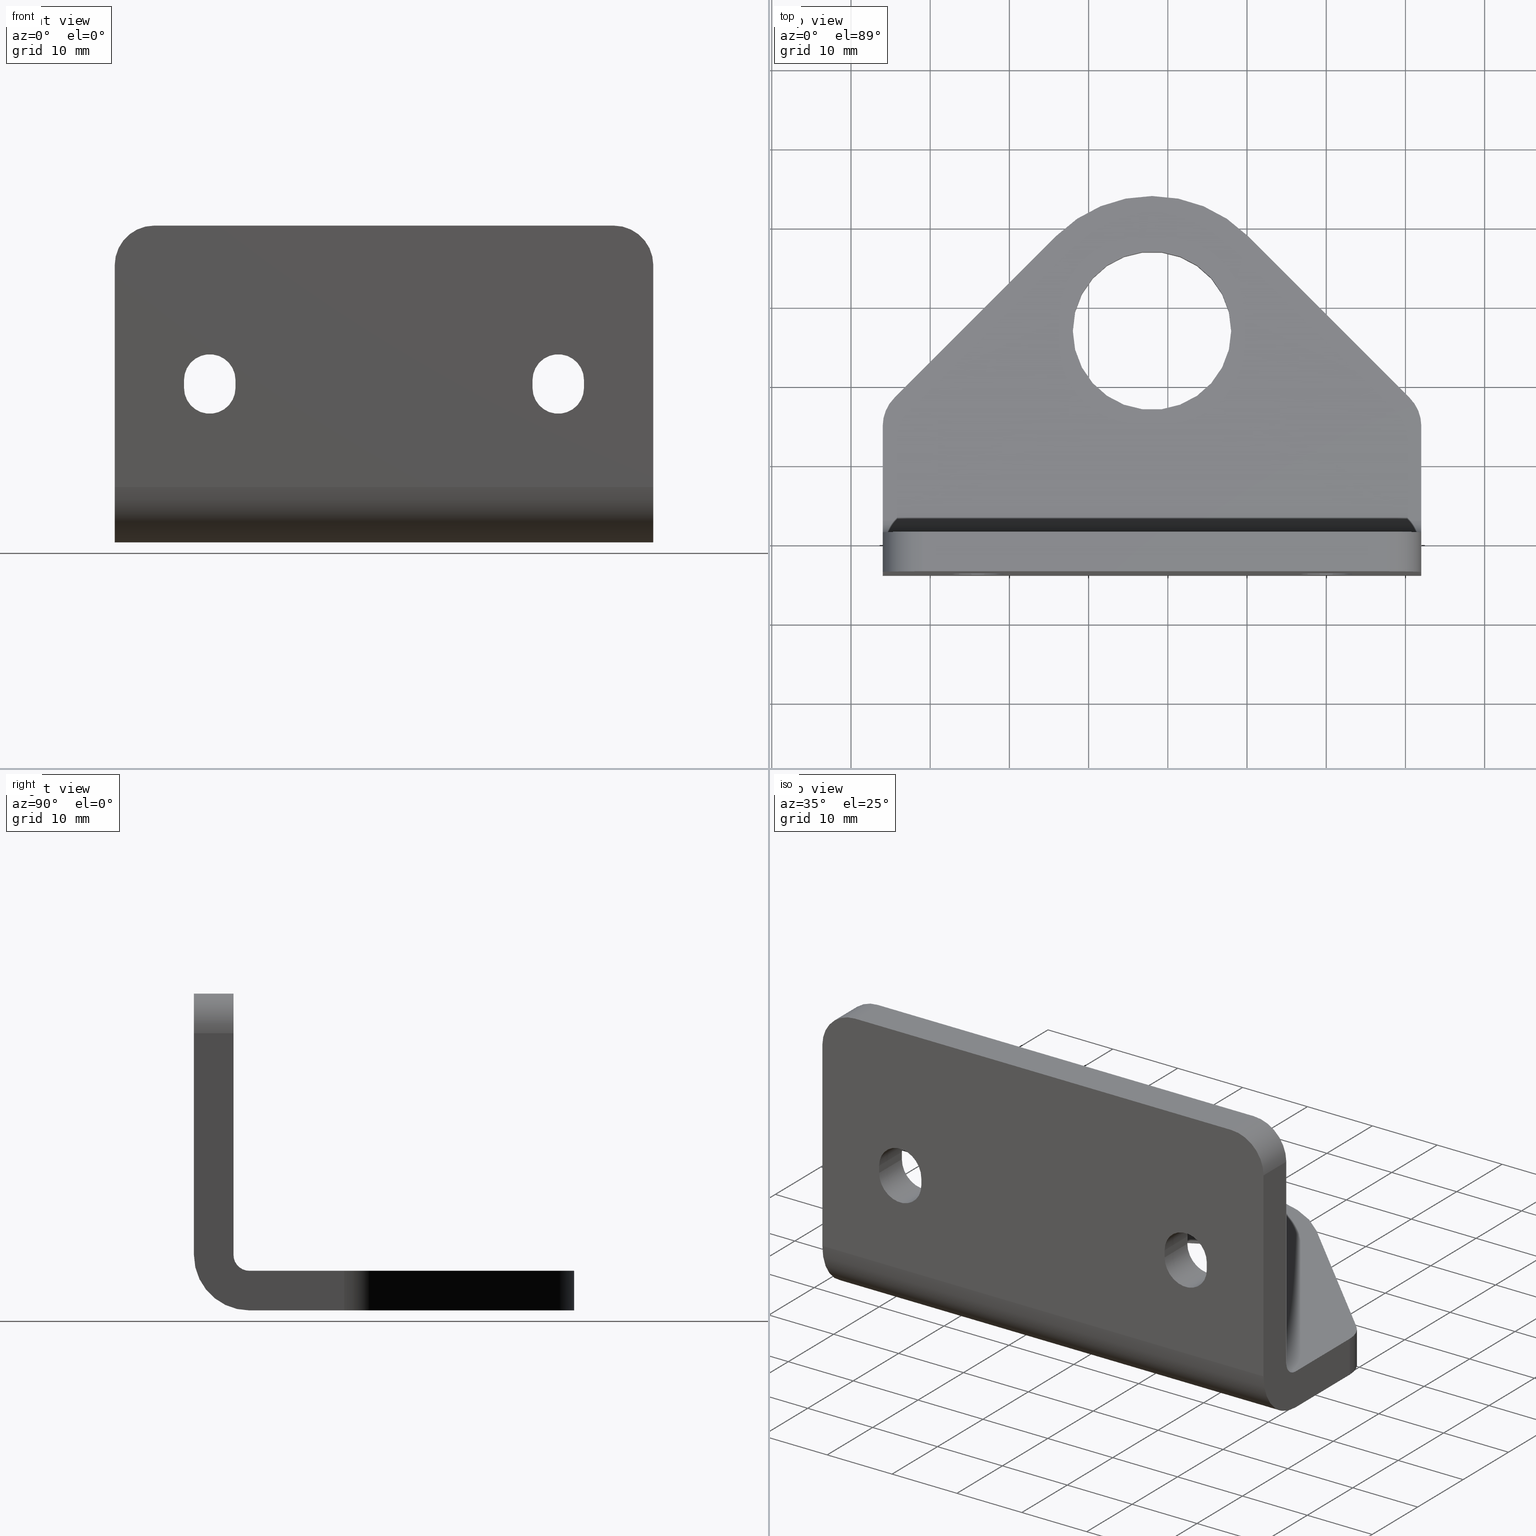
[diagram: canonical four-view strip — front | top / right | iso, engineering-drawing reading convention]
A machine part, canonical four-view strip (front | top / right | iso — engineering-drawing reading convention). The complete STEP part file that produces these views, byte-faithful:
ISO-10303-21;
HEADER;
/* Generated by software containing ST-Developer
 * from STEP Tools, Inc. (www.steptools.com) 
 */

FILE_DESCRIPTION(
/* description */ (''),
/* implementation_level */ '2;1');

FILE_NAME(
/* name */ '800 061.stp',
/* time_stamp */ '2023-12-18T09:12:01+01:00',
/* author */ ('dusan.cotek'),
/* organization */ (''),
/* preprocessor_version */ 'ST-DEVELOPER v20',
/* originating_system */ 'Autodesk Inventor 2024',
/* authorisation */ '');

FILE_SCHEMA (('AUTOMOTIVE_DESIGN { 1 0 10303 214 3 1 1 }'));
ENDSEC;

DATA;
#10=MECHANICAL_DESIGN_GEOMETRIC_PRESENTATION_REPRESENTATION('',(#13),#915);
#11=SHAPE_REPRESENTATION_RELATIONSHIP('SRR','None',#922,#12);
#12=ADVANCED_BREP_SHAPE_REPRESENTATION('',(#14),#914);
#13=STYLED_ITEM('',(#931),#14);
#14=MANIFOLD_SOLID_BREP('T\X2\011B\X0\leso2',#530);
#15=FACE_BOUND('',#78,.T.);
#16=FACE_BOUND('',#79,.T.);
#17=FACE_BOUND('',#87,.T.);
#18=FACE_BOUND('',#88,.T.);
#19=FACE_BOUND('',#92,.T.);
#20=FACE_BOUND('',#101,.T.);
#21=PLANE('',#556);
#22=PLANE('',#560);
#23=PLANE('',#564);
#24=PLANE('',#568);
#25=PLANE('',#572);
#26=PLANE('',#573);
#27=PLANE('',#577);
#28=PLANE('',#581);
#29=PLANE('',#583);
#30=PLANE('',#585);
#31=PLANE('',#586);
#32=PLANE('',#588);
#33=PLANE('',#589);
#34=PLANE('',#598);
#35=PLANE('',#601);
#36=PLANE('',#604);
#37=PLANE('',#605);
#38=FACE_OUTER_BOUND('',#67,.T.);
#39=FACE_OUTER_BOUND('',#68,.T.);
#40=FACE_OUTER_BOUND('',#69,.T.);
#41=FACE_OUTER_BOUND('',#70,.T.);
#42=FACE_OUTER_BOUND('',#71,.T.);
#43=FACE_OUTER_BOUND('',#72,.T.);
#44=FACE_OUTER_BOUND('',#73,.T.);
#45=FACE_OUTER_BOUND('',#74,.T.);
#46=FACE_OUTER_BOUND('',#75,.T.);
#47=FACE_OUTER_BOUND('',#76,.T.);
#48=FACE_OUTER_BOUND('',#77,.T.);
#49=FACE_OUTER_BOUND('',#80,.T.);
#50=FACE_OUTER_BOUND('',#81,.T.);
#51=FACE_OUTER_BOUND('',#82,.T.);
#52=FACE_OUTER_BOUND('',#83,.T.);
#53=FACE_OUTER_BOUND('',#84,.T.);
#54=FACE_OUTER_BOUND('',#85,.T.);
#55=FACE_OUTER_BOUND('',#86,.T.);
#56=FACE_OUTER_BOUND('',#89,.T.);
#57=FACE_OUTER_BOUND('',#90,.T.);
#58=FACE_OUTER_BOUND('',#91,.T.);
#59=FACE_OUTER_BOUND('',#93,.T.);
#60=FACE_OUTER_BOUND('',#94,.T.);
#61=FACE_OUTER_BOUND('',#95,.T.);
#62=FACE_OUTER_BOUND('',#96,.T.);
#63=FACE_OUTER_BOUND('',#97,.T.);
#64=FACE_OUTER_BOUND('',#98,.T.);
#65=FACE_OUTER_BOUND('',#99,.T.);
#66=FACE_OUTER_BOUND('',#100,.T.);
#67=EDGE_LOOP('',(#343,#344,#345,#346));
#68=EDGE_LOOP('',(#347,#348,#349,#350));
#69=EDGE_LOOP('',(#351,#352,#353,#354));
#70=EDGE_LOOP('',(#355,#356,#357,#358));
#71=EDGE_LOOP('',(#359,#360,#361,#362));
#72=EDGE_LOOP('',(#363,#364,#365,#366));
#73=EDGE_LOOP('',(#367,#368,#369,#370));
#74=EDGE_LOOP('',(#371,#372,#373,#374));
#75=EDGE_LOOP('',(#375,#376,#377,#378));
#76=EDGE_LOOP('',(#379,#380,#381,#382));
#77=EDGE_LOOP('',(#383,#384,#385,#386,#387,#388));
#78=EDGE_LOOP('',(#389,#390,#391,#392));
#79=EDGE_LOOP('',(#393,#394,#395,#396));
#80=EDGE_LOOP('',(#397,#398,#399,#400));
#81=EDGE_LOOP('',(#401,#402,#403,#404));
#82=EDGE_LOOP('',(#405,#406,#407,#408));
#83=EDGE_LOOP('',(#409,#410,#411,#412));
#84=EDGE_LOOP('',(#413,#414,#415,#416));
#85=EDGE_LOOP('',(#417,#418,#419,#420));
#86=EDGE_LOOP('',(#421,#422,#423,#424,#425,#426));
#87=EDGE_LOOP('',(#427,#428,#429,#430));
#88=EDGE_LOOP('',(#431,#432,#433,#434));
#89=EDGE_LOOP('',(#435,#436,#437,#438));
#90=EDGE_LOOP('',(#439,#440,#441,#442));
#91=EDGE_LOOP('',(#443,#444,#445,#446,#447,#448,#449,#450));
#92=EDGE_LOOP('',(#451));
#93=EDGE_LOOP('',(#452,#453,#454,#455));
#94=EDGE_LOOP('',(#456,#457,#458,#459));
#95=EDGE_LOOP('',(#460,#461,#462,#463));
#96=EDGE_LOOP('',(#464,#465,#466,#467));
#97=EDGE_LOOP('',(#468,#469,#470,#471));
#98=EDGE_LOOP('',(#472,#473,#474,#475));
#99=EDGE_LOOP('',(#476,#477,#478,#479));
#100=EDGE_LOOP('',(#480,#481,#482,#483,#484,#485,#486,#487));
#101=EDGE_LOOP('',(#488));
#102=LINE('',#769,#151);
#103=LINE('',#772,#152);
#104=LINE('',#775,#153);
#105=LINE('',#777,#154);
#106=LINE('',#778,#155);
#107=LINE('',#783,#156);
#108=LINE('',#786,#157);
#109=LINE('',#787,#158);
#110=LINE('',#793,#159);
#111=LINE('',#796,#160);
#112=LINE('',#799,#161);
#113=LINE('',#801,#162);
#114=LINE('',#802,#163);
#115=LINE('',#807,#164);
#116=LINE('',#810,#165);
#117=LINE('',#811,#166);
#118=LINE('',#817,#167);
#119=LINE('',#820,#168);
#120=LINE('',#823,#169);
#121=LINE('',#825,#170);
#122=LINE('',#826,#171);
#123=LINE('',#829,#172);
#124=LINE('',#833,#173);
#125=LINE('',#834,#174);
#126=LINE('',#839,#175);
#127=LINE('',#840,#176);
#128=LINE('',#843,#177);
#129=LINE('',#844,#178);
#130=LINE('',#846,#179);
#131=LINE('',#850,#180);
#132=LINE('',#855,#181);
#133=LINE('',#858,#182);
#134=LINE('',#861,#183);
#135=LINE('',#864,#184);
#136=LINE('',#867,#185);
#137=LINE('',#869,#186);
#138=LINE('',#870,#187);
#139=LINE('',#873,#188);
#140=LINE('',#877,#189);
#141=LINE('',#881,#190);
#142=LINE('',#887,#191);
#143=LINE('',#891,#192);
#144=LINE('',#894,#193);
#145=LINE('',#897,#194);
#146=LINE('',#898,#195);
#147=LINE('',#902,#196);
#148=LINE('',#905,#197);
#149=LINE('',#906,#198);
#150=LINE('',#910,#199);
#151=VECTOR('',#612,10.);
#152=VECTOR('',#615,10.);
#153=VECTOR('',#618,10.);
#154=VECTOR('',#619,10.);
#155=VECTOR('',#620,10.);
#156=VECTOR('',#625,10.);
#157=VECTOR('',#630,10.);
#158=VECTOR('',#631,10.);
#159=VECTOR('',#636,10.);
#160=VECTOR('',#639,10.);
#161=VECTOR('',#642,10.);
#162=VECTOR('',#643,10.);
#163=VECTOR('',#644,10.);
#164=VECTOR('',#649,10.);
#165=VECTOR('',#654,10.);
#166=VECTOR('',#655,10.);
#167=VECTOR('',#660,10.);
#168=VECTOR('',#663,10.);
#169=VECTOR('',#666,4.19999999999999);
#170=VECTOR('',#667,10.);
#171=VECTOR('',#668,10.);
#172=VECTOR('',#671,10.);
#173=VECTOR('',#674,4.19999999999999);
#174=VECTOR('',#675,10.);
#175=VECTOR('',#680,10.);
#176=VECTOR('',#681,10.);
#177=VECTOR('',#684,4.19999999999999);
#178=VECTOR('',#685,10.);
#179=VECTOR('',#688,10.);
#180=VECTOR('',#691,10.);
#181=VECTOR('',#698,10.);
#182=VECTOR('',#701,10.);
#183=VECTOR('',#706,10.);
#184=VECTOR('',#711,10.);
#185=VECTOR('',#714,10.);
#186=VECTOR('',#715,10.);
#187=VECTOR('',#716,10.);
#188=VECTOR('',#719,10.);
#189=VECTOR('',#722,10.);
#190=VECTOR('',#725,10.);
#191=VECTOR('',#732,10.);
#192=VECTOR('',#737,10.);
#193=VECTOR('',#740,10.);
#194=VECTOR('',#743,10.);
#195=VECTOR('',#744,10.);
#196=VECTOR('',#749,10.);
#197=VECTOR('',#752,10.);
#198=VECTOR('',#753,10.);
#199=VECTOR('',#760,10.);
#200=CIRCLE('',#554,3.25);
#201=CIRCLE('',#555,3.25);
#202=CIRCLE('',#558,3.25);
#203=CIRCLE('',#559,3.25);
#204=CIRCLE('',#562,3.25);
#205=CIRCLE('',#563,3.25);
#206=CIRCLE('',#566,3.25);
#207=CIRCLE('',#567,3.25);
#208=CIRCLE('',#570,5.);
#209=CIRCLE('',#571,5.);
#210=CIRCLE('',#574,5.);
#211=CIRCLE('',#576,5.);
#212=CIRCLE('',#579,7.);
#213=CIRCLE('',#580,6.99999999999999);
#214=CIRCLE('',#582,1.99999999999999);
#215=CIRCLE('',#584,1.99999999999999);
#216=CIRCLE('',#590,4.99999999999999);
#217=CIRCLE('',#591,17.);
#218=CIRCLE('',#592,4.9999999999999);
#219=CIRCLE('',#593,10.);
#220=CIRCLE('',#595,10.);
#221=CIRCLE('',#597,4.99999999999999);
#222=CIRCLE('',#600,17.);
#223=CIRCLE('',#603,4.9999999999999);
#224=VERTEX_POINT('',#765);
#225=VERTEX_POINT('',#766);
#226=VERTEX_POINT('',#768);
#227=VERTEX_POINT('',#770);
#228=VERTEX_POINT('',#774);
#229=VERTEX_POINT('',#776);
#230=VERTEX_POINT('',#780);
#231=VERTEX_POINT('',#782);
#232=VERTEX_POINT('',#789);
#233=VERTEX_POINT('',#790);
#234=VERTEX_POINT('',#792);
#235=VERTEX_POINT('',#794);
#236=VERTEX_POINT('',#798);
#237=VERTEX_POINT('',#800);
#238=VERTEX_POINT('',#804);
#239=VERTEX_POINT('',#806);
#240=VERTEX_POINT('',#813);
#241=VERTEX_POINT('',#814);
#242=VERTEX_POINT('',#816);
#243=VERTEX_POINT('',#818);
#244=VERTEX_POINT('',#822);
#245=VERTEX_POINT('',#824);
#246=VERTEX_POINT('',#828);
#247=VERTEX_POINT('',#830);
#248=VERTEX_POINT('',#832);
#249=VERTEX_POINT('',#836);
#250=VERTEX_POINT('',#837);
#251=VERTEX_POINT('',#842);
#252=VERTEX_POINT('',#847);
#253=VERTEX_POINT('',#849);
#254=VERTEX_POINT('',#853);
#255=VERTEX_POINT('',#857);
#256=VERTEX_POINT('',#866);
#257=VERTEX_POINT('',#868);
#258=VERTEX_POINT('',#872);
#259=VERTEX_POINT('',#874);
#260=VERTEX_POINT('',#876);
#261=VERTEX_POINT('',#878);
#262=VERTEX_POINT('',#880);
#263=VERTEX_POINT('',#883);
#264=VERTEX_POINT('',#886);
#265=VERTEX_POINT('',#890);
#266=VERTEX_POINT('',#892);
#267=VERTEX_POINT('',#896);
#268=VERTEX_POINT('',#900);
#269=VERTEX_POINT('',#904);
#270=EDGE_CURVE('',#224,#225,#200,.T.);
#271=EDGE_CURVE('',#224,#226,#102,.T.);
#272=EDGE_CURVE('',#227,#226,#201,.T.);
#273=EDGE_CURVE('',#225,#227,#103,.T.);
#274=EDGE_CURVE('',#228,#224,#104,.T.);
#275=EDGE_CURVE('',#228,#229,#105,.T.);
#276=EDGE_CURVE('',#226,#229,#106,.T.);
#277=EDGE_CURVE('',#230,#228,#202,.T.);
#278=EDGE_CURVE('',#230,#231,#107,.T.);
#279=EDGE_CURVE('',#229,#231,#203,.T.);
#280=EDGE_CURVE('',#225,#230,#108,.T.);
#281=EDGE_CURVE('',#231,#227,#109,.T.);
#282=EDGE_CURVE('',#232,#233,#204,.T.);
#283=EDGE_CURVE('',#232,#234,#110,.T.);
#284=EDGE_CURVE('',#235,#234,#205,.T.);
#285=EDGE_CURVE('',#233,#235,#111,.T.);
#286=EDGE_CURVE('',#236,#232,#112,.T.);
#287=EDGE_CURVE('',#236,#237,#113,.T.);
#288=EDGE_CURVE('',#234,#237,#114,.T.);
#289=EDGE_CURVE('',#238,#236,#206,.T.);
#290=EDGE_CURVE('',#238,#239,#115,.T.);
#291=EDGE_CURVE('',#237,#239,#207,.T.);
#292=EDGE_CURVE('',#233,#238,#116,.T.);
#293=EDGE_CURVE('',#239,#235,#117,.T.);
#294=EDGE_CURVE('',#240,#241,#208,.T.);
#295=EDGE_CURVE('',#241,#242,#118,.T.);
#296=EDGE_CURVE('',#242,#243,#209,.T.);
#297=EDGE_CURVE('',#243,#240,#119,.T.);
#298=EDGE_CURVE('',#243,#244,#120,.T.);
#299=EDGE_CURVE('',#244,#245,#121,.T.);
#300=EDGE_CURVE('',#245,#240,#122,.T.);
#301=EDGE_CURVE('',#242,#246,#123,.T.);
#302=EDGE_CURVE('',#247,#246,#210,.T.);
#303=EDGE_CURVE('',#247,#248,#124,.T.);
#304=EDGE_CURVE('',#248,#244,#125,.T.);
#305=EDGE_CURVE('',#249,#250,#211,.T.);
#306=EDGE_CURVE('',#250,#247,#126,.T.);
#307=EDGE_CURVE('',#246,#249,#127,.T.);
#308=EDGE_CURVE('',#250,#251,#128,.T.);
#309=EDGE_CURVE('',#251,#248,#129,.T.);
#310=EDGE_CURVE('',#245,#251,#130,.T.);
#311=EDGE_CURVE('',#252,#245,#212,.T.);
#312=EDGE_CURVE('',#253,#252,#131,.T.);
#313=EDGE_CURVE('',#251,#253,#213,.T.);
#314=EDGE_CURVE('',#244,#254,#214,.T.);
#315=EDGE_CURVE('',#252,#254,#132,.T.);
#316=EDGE_CURVE('',#255,#253,#133,.T.);
#317=EDGE_CURVE('',#248,#255,#215,.T.);
#318=EDGE_CURVE('',#241,#249,#134,.T.);
#319=EDGE_CURVE('',#254,#255,#135,.T.);
#320=EDGE_CURVE('',#253,#256,#136,.T.);
#321=EDGE_CURVE('',#256,#257,#137,.T.);
#322=EDGE_CURVE('',#255,#257,#138,.T.);
#323=EDGE_CURVE('',#258,#252,#139,.T.);
#324=EDGE_CURVE('',#259,#258,#216,.T.);
#325=EDGE_CURVE('',#260,#259,#140,.T.);
#326=EDGE_CURVE('',#261,#260,#217,.T.);
#327=EDGE_CURVE('',#262,#261,#141,.T.);
#328=EDGE_CURVE('',#256,#262,#218,.T.);
#329=EDGE_CURVE('',#263,#263,#219,.T.);
#330=EDGE_CURVE('',#263,#264,#142,.T.);
#331=EDGE_CURVE('',#264,#264,#220,.T.);
#332=EDGE_CURVE('',#258,#265,#143,.T.);
#333=EDGE_CURVE('',#266,#265,#221,.T.);
#334=EDGE_CURVE('',#259,#266,#144,.T.);
#335=EDGE_CURVE('',#267,#266,#145,.T.);
#336=EDGE_CURVE('',#260,#267,#146,.T.);
#337=EDGE_CURVE('',#268,#267,#222,.T.);
#338=EDGE_CURVE('',#261,#268,#147,.T.);
#339=EDGE_CURVE('',#269,#268,#148,.T.);
#340=EDGE_CURVE('',#262,#269,#149,.T.);
#341=EDGE_CURVE('',#257,#269,#223,.T.);
#342=EDGE_CURVE('',#265,#254,#150,.T.);
#343=ORIENTED_EDGE('',*,*,#270,.F.);
#344=ORIENTED_EDGE('',*,*,#271,.T.);
#345=ORIENTED_EDGE('',*,*,#272,.F.);
#346=ORIENTED_EDGE('',*,*,#273,.F.);
#347=ORIENTED_EDGE('',*,*,#274,.F.);
#348=ORIENTED_EDGE('',*,*,#275,.T.);
#349=ORIENTED_EDGE('',*,*,#276,.F.);
#350=ORIENTED_EDGE('',*,*,#271,.F.);
#351=ORIENTED_EDGE('',*,*,#277,.F.);
#352=ORIENTED_EDGE('',*,*,#278,.T.);
#353=ORIENTED_EDGE('',*,*,#279,.F.);
#354=ORIENTED_EDGE('',*,*,#275,.F.);
#355=ORIENTED_EDGE('',*,*,#280,.F.);
#356=ORIENTED_EDGE('',*,*,#273,.T.);
#357=ORIENTED_EDGE('',*,*,#281,.F.);
#358=ORIENTED_EDGE('',*,*,#278,.F.);
#359=ORIENTED_EDGE('',*,*,#282,.F.);
#360=ORIENTED_EDGE('',*,*,#283,.T.);
#361=ORIENTED_EDGE('',*,*,#284,.F.);
#362=ORIENTED_EDGE('',*,*,#285,.F.);
#363=ORIENTED_EDGE('',*,*,#286,.F.);
#364=ORIENTED_EDGE('',*,*,#287,.T.);
#365=ORIENTED_EDGE('',*,*,#288,.F.);
#366=ORIENTED_EDGE('',*,*,#283,.F.);
#367=ORIENTED_EDGE('',*,*,#289,.F.);
#368=ORIENTED_EDGE('',*,*,#290,.T.);
#369=ORIENTED_EDGE('',*,*,#291,.F.);
#370=ORIENTED_EDGE('',*,*,#287,.F.);
#371=ORIENTED_EDGE('',*,*,#292,.F.);
#372=ORIENTED_EDGE('',*,*,#285,.T.);
#373=ORIENTED_EDGE('',*,*,#293,.F.);
#374=ORIENTED_EDGE('',*,*,#290,.F.);
#375=ORIENTED_EDGE('',*,*,#294,.T.);
#376=ORIENTED_EDGE('',*,*,#295,.T.);
#377=ORIENTED_EDGE('',*,*,#296,.T.);
#378=ORIENTED_EDGE('',*,*,#297,.T.);
#379=ORIENTED_EDGE('',*,*,#297,.F.);
#380=ORIENTED_EDGE('',*,*,#298,.T.);
#381=ORIENTED_EDGE('',*,*,#299,.T.);
#382=ORIENTED_EDGE('',*,*,#300,.T.);
#383=ORIENTED_EDGE('',*,*,#296,.F.);
#384=ORIENTED_EDGE('',*,*,#301,.T.);
#385=ORIENTED_EDGE('',*,*,#302,.F.);
#386=ORIENTED_EDGE('',*,*,#303,.T.);
#387=ORIENTED_EDGE('',*,*,#304,.T.);
#388=ORIENTED_EDGE('',*,*,#298,.F.);
#389=ORIENTED_EDGE('',*,*,#270,.T.);
#390=ORIENTED_EDGE('',*,*,#280,.T.);
#391=ORIENTED_EDGE('',*,*,#277,.T.);
#392=ORIENTED_EDGE('',*,*,#274,.T.);
#393=ORIENTED_EDGE('',*,*,#282,.T.);
#394=ORIENTED_EDGE('',*,*,#292,.T.);
#395=ORIENTED_EDGE('',*,*,#289,.T.);
#396=ORIENTED_EDGE('',*,*,#286,.T.);
#397=ORIENTED_EDGE('',*,*,#305,.T.);
#398=ORIENTED_EDGE('',*,*,#306,.T.);
#399=ORIENTED_EDGE('',*,*,#302,.T.);
#400=ORIENTED_EDGE('',*,*,#307,.T.);
#401=ORIENTED_EDGE('',*,*,#306,.F.);
#402=ORIENTED_EDGE('',*,*,#308,.T.);
#403=ORIENTED_EDGE('',*,*,#309,.T.);
#404=ORIENTED_EDGE('',*,*,#303,.F.);
#405=ORIENTED_EDGE('',*,*,#310,.F.);
#406=ORIENTED_EDGE('',*,*,#311,.F.);
#407=ORIENTED_EDGE('',*,*,#312,.F.);
#408=ORIENTED_EDGE('',*,*,#313,.F.);
#409=ORIENTED_EDGE('',*,*,#299,.F.);
#410=ORIENTED_EDGE('',*,*,#314,.T.);
#411=ORIENTED_EDGE('',*,*,#315,.F.);
#412=ORIENTED_EDGE('',*,*,#311,.T.);
#413=ORIENTED_EDGE('',*,*,#309,.F.);
#414=ORIENTED_EDGE('',*,*,#313,.T.);
#415=ORIENTED_EDGE('',*,*,#316,.F.);
#416=ORIENTED_EDGE('',*,*,#317,.F.);
#417=ORIENTED_EDGE('',*,*,#295,.F.);
#418=ORIENTED_EDGE('',*,*,#318,.T.);
#419=ORIENTED_EDGE('',*,*,#307,.F.);
#420=ORIENTED_EDGE('',*,*,#301,.F.);
#421=ORIENTED_EDGE('',*,*,#294,.F.);
#422=ORIENTED_EDGE('',*,*,#300,.F.);
#423=ORIENTED_EDGE('',*,*,#310,.T.);
#424=ORIENTED_EDGE('',*,*,#308,.F.);
#425=ORIENTED_EDGE('',*,*,#305,.F.);
#426=ORIENTED_EDGE('',*,*,#318,.F.);
#427=ORIENTED_EDGE('',*,*,#272,.T.);
#428=ORIENTED_EDGE('',*,*,#276,.T.);
#429=ORIENTED_EDGE('',*,*,#279,.T.);
#430=ORIENTED_EDGE('',*,*,#281,.T.);
#431=ORIENTED_EDGE('',*,*,#284,.T.);
#432=ORIENTED_EDGE('',*,*,#288,.T.);
#433=ORIENTED_EDGE('',*,*,#291,.T.);
#434=ORIENTED_EDGE('',*,*,#293,.T.);
#435=ORIENTED_EDGE('',*,*,#304,.F.);
#436=ORIENTED_EDGE('',*,*,#317,.T.);
#437=ORIENTED_EDGE('',*,*,#319,.F.);
#438=ORIENTED_EDGE('',*,*,#314,.F.);
#439=ORIENTED_EDGE('',*,*,#316,.T.);
#440=ORIENTED_EDGE('',*,*,#320,.T.);
#441=ORIENTED_EDGE('',*,*,#321,.T.);
#442=ORIENTED_EDGE('',*,*,#322,.F.);
#443=ORIENTED_EDGE('',*,*,#312,.T.);
#444=ORIENTED_EDGE('',*,*,#323,.F.);
#445=ORIENTED_EDGE('',*,*,#324,.F.);
#446=ORIENTED_EDGE('',*,*,#325,.F.);
#447=ORIENTED_EDGE('',*,*,#326,.F.);
#448=ORIENTED_EDGE('',*,*,#327,.F.);
#449=ORIENTED_EDGE('',*,*,#328,.F.);
#450=ORIENTED_EDGE('',*,*,#320,.F.);
#451=ORIENTED_EDGE('',*,*,#329,.T.);
#452=ORIENTED_EDGE('',*,*,#329,.F.);
#453=ORIENTED_EDGE('',*,*,#330,.T.);
#454=ORIENTED_EDGE('',*,*,#331,.F.);
#455=ORIENTED_EDGE('',*,*,#330,.F.);
#456=ORIENTED_EDGE('',*,*,#324,.T.);
#457=ORIENTED_EDGE('',*,*,#332,.T.);
#458=ORIENTED_EDGE('',*,*,#333,.F.);
#459=ORIENTED_EDGE('',*,*,#334,.F.);
#460=ORIENTED_EDGE('',*,*,#325,.T.);
#461=ORIENTED_EDGE('',*,*,#334,.T.);
#462=ORIENTED_EDGE('',*,*,#335,.F.);
#463=ORIENTED_EDGE('',*,*,#336,.F.);
#464=ORIENTED_EDGE('',*,*,#326,.T.);
#465=ORIENTED_EDGE('',*,*,#336,.T.);
#466=ORIENTED_EDGE('',*,*,#337,.F.);
#467=ORIENTED_EDGE('',*,*,#338,.F.);
#468=ORIENTED_EDGE('',*,*,#327,.T.);
#469=ORIENTED_EDGE('',*,*,#338,.T.);
#470=ORIENTED_EDGE('',*,*,#339,.F.);
#471=ORIENTED_EDGE('',*,*,#340,.F.);
#472=ORIENTED_EDGE('',*,*,#328,.T.);
#473=ORIENTED_EDGE('',*,*,#340,.T.);
#474=ORIENTED_EDGE('',*,*,#341,.F.);
#475=ORIENTED_EDGE('',*,*,#321,.F.);
#476=ORIENTED_EDGE('',*,*,#315,.T.);
#477=ORIENTED_EDGE('',*,*,#342,.F.);
#478=ORIENTED_EDGE('',*,*,#332,.F.);
#479=ORIENTED_EDGE('',*,*,#323,.T.);
#480=ORIENTED_EDGE('',*,*,#319,.T.);
#481=ORIENTED_EDGE('',*,*,#322,.T.);
#482=ORIENTED_EDGE('',*,*,#341,.T.);
#483=ORIENTED_EDGE('',*,*,#339,.T.);
#484=ORIENTED_EDGE('',*,*,#337,.T.);
#485=ORIENTED_EDGE('',*,*,#335,.T.);
#486=ORIENTED_EDGE('',*,*,#333,.T.);
#487=ORIENTED_EDGE('',*,*,#342,.T.);
#488=ORIENTED_EDGE('',*,*,#331,.T.);
#489=CYLINDRICAL_SURFACE('',#553,3.25);
#490=CYLINDRICAL_SURFACE('',#557,3.25);
#491=CYLINDRICAL_SURFACE('',#561,3.25);
#492=CYLINDRICAL_SURFACE('',#565,3.25);
#493=CYLINDRICAL_SURFACE('',#569,5.);
#494=CYLINDRICAL_SURFACE('',#575,5.);
#495=CYLINDRICAL_SURFACE('',#578,7.);
#496=CYLINDRICAL_SURFACE('',#587,2.);
#497=CYLINDRICAL_SURFACE('',#594,10.);
#498=CYLINDRICAL_SURFACE('',#596,4.99999999999999);
#499=CYLINDRICAL_SURFACE('',#599,17.);
#500=CYLINDRICAL_SURFACE('',#602,4.9999999999999);
#501=ADVANCED_FACE('',(#38),#489,.F.);
#502=ADVANCED_FACE('',(#39),#21,.F.);
#503=ADVANCED_FACE('',(#40),#490,.F.);
#504=ADVANCED_FACE('',(#41),#22,.F.);
#505=ADVANCED_FACE('',(#42),#491,.F.);
#506=ADVANCED_FACE('',(#43),#23,.F.);
#507=ADVANCED_FACE('',(#44),#492,.F.);
#508=ADVANCED_FACE('',(#45),#24,.F.);
#509=ADVANCED_FACE('',(#46),#493,.T.);
#510=ADVANCED_FACE('',(#47),#25,.T.);
#511=ADVANCED_FACE('',(#48,#15,#16),#26,.T.);
#512=ADVANCED_FACE('',(#49),#494,.T.);
#513=ADVANCED_FACE('',(#50),#27,.T.);
#514=ADVANCED_FACE('',(#51),#495,.T.);
#515=ADVANCED_FACE('',(#52),#28,.T.);
#516=ADVANCED_FACE('',(#53),#29,.T.);
#517=ADVANCED_FACE('',(#54),#30,.T.);
#518=ADVANCED_FACE('',(#55,#17,#18),#31,.F.);
#519=ADVANCED_FACE('',(#56),#496,.F.);
#520=ADVANCED_FACE('',(#57),#32,.T.);
#521=ADVANCED_FACE('',(#58,#19),#33,.F.);
#522=ADVANCED_FACE('',(#59),#497,.F.);
#523=ADVANCED_FACE('',(#60),#498,.T.);
#524=ADVANCED_FACE('',(#61),#34,.T.);
#525=ADVANCED_FACE('',(#62),#499,.T.);
#526=ADVANCED_FACE('',(#63),#35,.T.);
#527=ADVANCED_FACE('',(#64),#500,.T.);
#528=ADVANCED_FACE('',(#65),#36,.T.);
#529=ADVANCED_FACE('',(#66,#20),#37,.T.);
#530=CLOSED_SHELL('',(#501,#502,#503,#504,#505,#506,#507,#508,#509,#510,
#511,#512,#513,#514,#515,#516,#517,#518,#519,#520,#521,#522,#523,#524,#525,
#526,#527,#528,#529));
#531=DERIVED_UNIT_ELEMENT(#534,1.);
#532=DERIVED_UNIT_ELEMENT(#917,-3.);
#533=DIMENSIONAL_EXPONENTS(0.,1.,0.,0.,0.,0.,0.);
#534=(
CONVERSION_BASED_UNIT('gram',#536)
MASS_UNIT()
NAMED_UNIT(#533)
);
#535=(
MASS_UNIT()
NAMED_UNIT(*)
SI_UNIT(.KILO.,.GRAM.)
);
#536=MASS_MEASURE_WITH_UNIT(MASS_MEASURE(0.001),#535);
#537=DERIVED_UNIT((#531,#532));
#538=MEASURE_REPRESENTATION_ITEM('density measure',
POSITIVE_RATIO_MEASURE(7.85),#537);
#539=PROPERTY_DEFINITION_REPRESENTATION(#544,#541);
#540=PROPERTY_DEFINITION_REPRESENTATION(#545,#542);
#541=REPRESENTATION('material name',(#543),#914);
#542=REPRESENTATION('density',(#538),#914);
#543=DESCRIPTIVE_REPRESENTATION_ITEM('Ocel','Ocel');
#544=PROPERTY_DEFINITION('material property','material name',#924);
#545=PROPERTY_DEFINITION('material property','density of part',#924);
#546=DATE_TIME_ROLE('creation_date');
#547=APPLIED_DATE_AND_TIME_ASSIGNMENT(#548,#546,(#924));
#548=DATE_AND_TIME(#549,#550);
#549=CALENDAR_DATE(2017,17,1);
#550=LOCAL_TIME(0,0,0.,#551);
#551=COORDINATED_UNIVERSAL_TIME_OFFSET(0,0,.BEHIND.);
#552=AXIS2_PLACEMENT_3D('',#763,#606,#607);
#553=AXIS2_PLACEMENT_3D('',#764,#608,#609);
#554=AXIS2_PLACEMENT_3D('',#767,#610,#611);
#555=AXIS2_PLACEMENT_3D('',#771,#613,#614);
#556=AXIS2_PLACEMENT_3D('',#773,#616,#617);
#557=AXIS2_PLACEMENT_3D('',#779,#621,#622);
#558=AXIS2_PLACEMENT_3D('',#781,#623,#624);
#559=AXIS2_PLACEMENT_3D('',#784,#626,#627);
#560=AXIS2_PLACEMENT_3D('',#785,#628,#629);
#561=AXIS2_PLACEMENT_3D('',#788,#632,#633);
#562=AXIS2_PLACEMENT_3D('',#791,#634,#635);
#563=AXIS2_PLACEMENT_3D('',#795,#637,#638);
#564=AXIS2_PLACEMENT_3D('',#797,#640,#641);
#565=AXIS2_PLACEMENT_3D('',#803,#645,#646);
#566=AXIS2_PLACEMENT_3D('',#805,#647,#648);
#567=AXIS2_PLACEMENT_3D('',#808,#650,#651);
#568=AXIS2_PLACEMENT_3D('',#809,#652,#653);
#569=AXIS2_PLACEMENT_3D('',#812,#656,#657);
#570=AXIS2_PLACEMENT_3D('',#815,#658,#659);
#571=AXIS2_PLACEMENT_3D('',#819,#661,#662);
#572=AXIS2_PLACEMENT_3D('',#821,#664,#665);
#573=AXIS2_PLACEMENT_3D('',#827,#669,#670);
#574=AXIS2_PLACEMENT_3D('',#831,#672,#673);
#575=AXIS2_PLACEMENT_3D('',#835,#676,#677);
#576=AXIS2_PLACEMENT_3D('',#838,#678,#679);
#577=AXIS2_PLACEMENT_3D('',#841,#682,#683);
#578=AXIS2_PLACEMENT_3D('',#845,#686,#687);
#579=AXIS2_PLACEMENT_3D('',#848,#689,#690);
#580=AXIS2_PLACEMENT_3D('',#851,#692,#693);
#581=AXIS2_PLACEMENT_3D('',#852,#694,#695);
#582=AXIS2_PLACEMENT_3D('',#854,#696,#697);
#583=AXIS2_PLACEMENT_3D('',#856,#699,#700);
#584=AXIS2_PLACEMENT_3D('',#859,#702,#703);
#585=AXIS2_PLACEMENT_3D('',#860,#704,#705);
#586=AXIS2_PLACEMENT_3D('',#862,#707,#708);
#587=AXIS2_PLACEMENT_3D('',#863,#709,#710);
#588=AXIS2_PLACEMENT_3D('',#865,#712,#713);
#589=AXIS2_PLACEMENT_3D('',#871,#717,#718);
#590=AXIS2_PLACEMENT_3D('',#875,#720,#721);
#591=AXIS2_PLACEMENT_3D('',#879,#723,#724);
#592=AXIS2_PLACEMENT_3D('',#882,#726,#727);
#593=AXIS2_PLACEMENT_3D('',#884,#728,#729);
#594=AXIS2_PLACEMENT_3D('',#885,#730,#731);
#595=AXIS2_PLACEMENT_3D('',#888,#733,#734);
#596=AXIS2_PLACEMENT_3D('',#889,#735,#736);
#597=AXIS2_PLACEMENT_3D('',#893,#738,#739);
#598=AXIS2_PLACEMENT_3D('',#895,#741,#742);
#599=AXIS2_PLACEMENT_3D('',#899,#745,#746);
#600=AXIS2_PLACEMENT_3D('',#901,#747,#748);
#601=AXIS2_PLACEMENT_3D('',#903,#750,#751);
#602=AXIS2_PLACEMENT_3D('',#907,#754,#755);
#603=AXIS2_PLACEMENT_3D('',#908,#756,#757);
#604=AXIS2_PLACEMENT_3D('',#909,#758,#759);
#605=AXIS2_PLACEMENT_3D('',#911,#761,#762);
#606=DIRECTION('axis',(0.,0.,1.));
#607=DIRECTION('refdir',(1.,0.,0.));
#608=DIRECTION('center_axis',(0.,-1.,-5.77315972805081E-15));
#609=DIRECTION('ref_axis',(-1.,-5.12759588393657E-29,8.88178419700125E-15));
#610=DIRECTION('center_axis',(-4.88408820356846E-18,-1.,-5.58626046576697E-15));
#611=DIRECTION('ref_axis',(-1.,4.88408820351885E-18,8.88178419700125E-15));
#612=DIRECTION('',(0.,-1.,-5.77315972805081E-15));
#613=DIRECTION('center_axis',(-4.88408820356866E-18,1.,5.58626046576697E-15));
#614=DIRECTION('ref_axis',(-1.,-4.88408820361828E-18,8.88178419700125E-15));
#615=DIRECTION('',(0.,-1.,-5.77315972805081E-15));
#616=DIRECTION('center_axis',(-1.,0.,0.));
#617=DIRECTION('ref_axis',(0.,5.6843418860808E-15,-1.));
#618=DIRECTION('',(0.,5.58626046576697E-15,-1.));
#619=DIRECTION('',(0.,-1.,-5.77315972805081E-15));
#620=DIRECTION('',(0.,-5.58626046576697E-15,1.));
#621=DIRECTION('center_axis',(0.,-1.,-5.77315972805081E-15));
#622=DIRECTION('ref_axis',(1.,5.12759588393657E-29,-8.88178419700125E-15));
#623=DIRECTION('center_axis',(-4.88408820356846E-18,-1.,-5.58626046576697E-15));
#624=DIRECTION('ref_axis',(1.,-4.88408820351885E-18,-8.88178419700125E-15));
#625=DIRECTION('',(0.,-1.,-5.77315972805081E-15));
#626=DIRECTION('center_axis',(-4.88408820356866E-18,1.,5.58626046576697E-15));
#627=DIRECTION('ref_axis',(1.,4.88408820361828E-18,-8.88178419700125E-15));
#628=DIRECTION('center_axis',(1.,0.,0.));
#629=DIRECTION('ref_axis',(0.,-5.6843418860808E-15,1.));
#630=DIRECTION('',(0.,-5.58626046576697E-15,1.));
#631=DIRECTION('',(0.,5.58626046576697E-15,-1.));
#632=DIRECTION('center_axis',(0.,-1.,-5.77315972805081E-15));
#633=DIRECTION('ref_axis',(-1.,-5.12759588393657E-29,8.88178419700125E-15));
#634=DIRECTION('center_axis',(-4.88408820356846E-18,-1.,-5.58626046576697E-15));
#635=DIRECTION('ref_axis',(-1.,4.88408820351885E-18,8.88178419700125E-15));
#636=DIRECTION('',(0.,-1.,-5.77315972805081E-15));
#637=DIRECTION('center_axis',(-4.88408820356866E-18,1.,5.58626046576697E-15));
#638=DIRECTION('ref_axis',(-1.,-4.88408820361828E-18,8.88178419700125E-15));
#639=DIRECTION('',(0.,-1.,-5.77315972805081E-15));
#640=DIRECTION('center_axis',(-1.,0.,0.));
#641=DIRECTION('ref_axis',(0.,5.6843418860808E-15,-1.));
#642=DIRECTION('',(0.,5.58626046576697E-15,-1.));
#643=DIRECTION('',(0.,-1.,-5.77315972805081E-15));
#644=DIRECTION('',(0.,-5.58626046576697E-15,1.));
#645=DIRECTION('center_axis',(0.,-1.,-5.77315972805081E-15));
#646=DIRECTION('ref_axis',(1.,5.12759588393657E-29,-8.88178419700125E-15));
#647=DIRECTION('center_axis',(-4.88408820356846E-18,-1.,-5.58626046576697E-15));
#648=DIRECTION('ref_axis',(1.,-4.88408820351885E-18,-8.88178419700125E-15));
#649=DIRECTION('',(0.,-1.,-5.77315972805081E-15));
#650=DIRECTION('center_axis',(-4.88408820356866E-18,1.,5.58626046576697E-15));
#651=DIRECTION('ref_axis',(1.,4.88408820361828E-18,-8.88178419700125E-15));
#652=DIRECTION('center_axis',(1.,0.,0.));
#653=DIRECTION('ref_axis',(0.,-5.6843418860808E-15,1.));
#654=DIRECTION('',(0.,-5.58626046576697E-15,1.));
#655=DIRECTION('',(0.,5.58626046576697E-15,-1.));
#656=DIRECTION('center_axis',(0.,-1.,-5.39030285815812E-15));
#657=DIRECTION('ref_axis',(-0.707106781186548,-3.81151970365284E-15,0.707106781186548));
#658=DIRECTION('center_axis',(-4.88408820356866E-18,1.,5.58626046576697E-15));
#659=DIRECTION('ref_axis',(-0.707106781186548,-3.9535362287068E-15,0.707106781186548));
#660=DIRECTION('',(0.,1.,5.39030285815812E-15));
#661=DIRECTION('center_axis',(-4.88408820356846E-18,-1.,-5.58626046576697E-15));
#662=DIRECTION('ref_axis',(-0.707106781186548,-3.94662908492949E-15,0.707106781186548));
#663=DIRECTION('',(0.,-1.,-5.39030285815812E-15));
#664=DIRECTION('center_axis',(-1.,0.,0.));
#665=DIRECTION('ref_axis',(0.,1.,5.41788836017076E-15));
#666=DIRECTION('',(0.,5.32907051820075E-15,-1.));
#667=DIRECTION('',(0.,-1.,-5.39030285815812E-15));
#668=DIRECTION('',(0.,-5.39030285815812E-15,1.));
#669=DIRECTION('center_axis',(4.88408820356846E-18,1.,5.58626046576697E-15));
#670=DIRECTION('ref_axis',(1.,-4.88408820356846E-18,-2.72837888429133E-32));
#671=DIRECTION('',(1.,0.,0.));
#672=DIRECTION('center_axis',(-4.88408820356846E-18,-1.,-5.58626046576697E-15));
#673=DIRECTION('ref_axis',(0.707106781186548,-3.9535362287068E-15,0.707106781186548));
#674=DIRECTION('',(0.,5.32907051820075E-15,-1.));
#675=DIRECTION('',(-1.,4.88408820356846E-18,2.63267146031914E-32));
#676=DIRECTION('center_axis',(0.,-1.,-5.39030285815812E-15));
#677=DIRECTION('ref_axis',(0.707106781186548,-3.81151970365284E-15,0.707106781186548));
#678=DIRECTION('center_axis',(-4.88408820356866E-18,1.,5.58626046576697E-15));
#679=DIRECTION('ref_axis',(0.707106781186548,-3.94662908492949E-15,0.707106781186548));
#680=DIRECTION('',(0.,1.,5.39030285815812E-15));
#681=DIRECTION('',(0.,-1.,-5.39030285815812E-15));
#682=DIRECTION('center_axis',(1.,0.,0.));
#683=DIRECTION('ref_axis',(0.,-1.,-5.41788836017076E-15));
#684=DIRECTION('',(0.,5.32907051820075E-15,-1.));
#685=DIRECTION('',(0.,1.,5.39030285815812E-15));
#686=DIRECTION('center_axis',(-1.,0.,0.));
#687=DIRECTION('ref_axis',(0.,0.,-1.));
#688=DIRECTION('',(1.,4.88408820356866E-18,2.63267146031925E-32));
#689=DIRECTION('center_axis',(-1.,0.,0.));
#690=DIRECTION('ref_axis',(0.,0.,-1.));
#691=DIRECTION('',(-1.,0.,0.));
#692=DIRECTION('center_axis',(1.,0.,0.));
#693=DIRECTION('ref_axis',(0.,-1.,-5.39251183389362E-15));
#694=DIRECTION('center_axis',(-1.,0.,0.));
#695=DIRECTION('ref_axis',(0.,0.,1.));
#696=DIRECTION('center_axis',(1.,0.,0.));
#697=DIRECTION('ref_axis',(0.,-1.,-5.5511151231258E-15));
#698=DIRECTION('',(0.,0.,1.));
#699=DIRECTION('center_axis',(1.,0.,0.));
#700=DIRECTION('ref_axis',(0.,0.,-1.));
#701=DIRECTION('',(0.,0.,-1.));
#702=DIRECTION('center_axis',(1.,0.,0.));
#703=DIRECTION('ref_axis',(0.,-1.,-5.5511151231258E-15));
#704=DIRECTION('center_axis',(0.,-5.39030285815812E-15,1.));
#705=DIRECTION('ref_axis',(0.,-1.,-5.39030285815812E-15));
#706=DIRECTION('',(1.,0.,0.));
#707=DIRECTION('center_axis',(-4.88408820356866E-18,1.,5.58626046576697E-15));
#708=DIRECTION('ref_axis',(1.,4.88408820356866E-18,2.72837888429144E-32));
#709=DIRECTION('center_axis',(-1.,0.,0.));
#710=DIRECTION('ref_axis',(0.,0.,-1.));
#711=DIRECTION('',(1.,0.,0.));
#712=DIRECTION('center_axis',(1.,0.,0.));
#713=DIRECTION('ref_axis',(0.,1.,0.));
#714=DIRECTION('',(0.,1.,0.));
#715=DIRECTION('',(0.,0.,1.));
#716=DIRECTION('',(0.,1.,0.));
#717=DIRECTION('center_axis',(0.,0.,1.));
#718=DIRECTION('ref_axis',(1.,0.,0.));
#719=DIRECTION('',(0.,-1.,0.));
#720=DIRECTION('center_axis',(0.,0.,1.));
#721=DIRECTION('ref_axis',(-0.707106781186547,0.707106781186548,0.));
#722=DIRECTION('',(-0.707106781186541,-0.707106781186554,0.));
#723=DIRECTION('center_axis',(0.,0.,1.));
#724=DIRECTION('ref_axis',(0.707106781186542,0.707106781186554,0.));
#725=DIRECTION('',(-0.707106781186554,0.707106781186541,0.));
#726=DIRECTION('center_axis',(0.,0.,1.));
#727=DIRECTION('ref_axis',(1.,0.,0.));
#728=DIRECTION('center_axis',(0.,0.,1.));
#729=DIRECTION('ref_axis',(-1.,0.,0.));
#730=DIRECTION('center_axis',(0.,0.,1.));
#731=DIRECTION('ref_axis',(-1.,0.,0.));
#732=DIRECTION('',(0.,0.,1.));
#733=DIRECTION('center_axis',(0.,0.,-1.));
#734=DIRECTION('ref_axis',(-1.,0.,0.));
#735=DIRECTION('center_axis',(0.,0.,1.));
#736=DIRECTION('ref_axis',(-0.707106781186547,0.707106781186548,0.));
#737=DIRECTION('',(0.,0.,1.));
#738=DIRECTION('center_axis',(0.,0.,1.));
#739=DIRECTION('ref_axis',(-0.707106781186547,0.707106781186548,0.));
#740=DIRECTION('',(0.,0.,1.));
#741=DIRECTION('center_axis',(-0.707106781186554,0.707106781186541,0.));
#742=DIRECTION('ref_axis',(-0.707106781186541,-0.707106781186554,0.));
#743=DIRECTION('',(-0.707106781186541,-0.707106781186554,0.));
#744=DIRECTION('',(0.,0.,1.));
#745=DIRECTION('center_axis',(0.,0.,1.));
#746=DIRECTION('ref_axis',(0.707106781186542,0.707106781186554,0.));
#747=DIRECTION('center_axis',(0.,0.,1.));
#748=DIRECTION('ref_axis',(0.707106781186542,0.707106781186554,0.));
#749=DIRECTION('',(0.,0.,1.));
#750=DIRECTION('center_axis',(0.707106781186541,0.707106781186554,0.));
#751=DIRECTION('ref_axis',(-0.707106781186554,0.707106781186541,0.));
#752=DIRECTION('',(-0.707106781186554,0.707106781186541,0.));
#753=DIRECTION('',(0.,0.,1.));
#754=DIRECTION('center_axis',(0.,0.,1.));
#755=DIRECTION('ref_axis',(1.,0.,0.));
#756=DIRECTION('center_axis',(0.,0.,1.));
#757=DIRECTION('ref_axis',(1.,0.,0.));
#758=DIRECTION('center_axis',(-1.,0.,0.));
#759=DIRECTION('ref_axis',(0.,-1.,0.));
#760=DIRECTION('',(0.,-1.,0.));
#761=DIRECTION('center_axis',(0.,0.,1.));
#762=DIRECTION('ref_axis',(1.,0.,0.));
#763=CARTESIAN_POINT('',(0.,0.,0.));
#764=CARTESIAN_POINT('Origin',(80.0042552273484,231.069817976792,19.5));
#765=CARTESIAN_POINT('',(76.7542552273484,231.069817976792,19.5000000000001));
#766=CARTESIAN_POINT('',(83.2542552273484,231.069817976792,19.5));
#767=CARTESIAN_POINT('Origin',(80.0042552273484,231.069817976792,19.5));
#768=CARTESIAN_POINT('',(76.7542552273484,226.069817976792,19.5));
#769=CARTESIAN_POINT('',(76.7542552273484,231.069817976792,19.5000000000001));
#770=CARTESIAN_POINT('',(83.2542552273484,226.069817976792,19.5));
#771=CARTESIAN_POINT('Origin',(80.0042552273484,226.069817976792,19.5));
#772=CARTESIAN_POINT('',(83.2542552273484,231.069817976792,19.5));
#773=CARTESIAN_POINT('Origin',(76.7542552273484,231.069817976792,20.5000000000001));
#774=CARTESIAN_POINT('',(76.7542552273484,231.069817976792,20.5000000000001));
#775=CARTESIAN_POINT('',(76.7542552273484,231.069817976792,20.3506638568655));
#776=CARTESIAN_POINT('',(76.7542552273484,226.069817976792,20.5));
#777=CARTESIAN_POINT('',(76.7542552273484,231.069817976792,20.5000000000001));
#778=CARTESIAN_POINT('',(76.7542552273484,226.069817976792,20.3506638568654));
#779=CARTESIAN_POINT('Origin',(80.0042552273484,231.069817976792,20.5));
#780=CARTESIAN_POINT('',(83.2542552273484,231.069817976792,20.5));
#781=CARTESIAN_POINT('Origin',(80.0042552273484,231.069817976792,20.5));
#782=CARTESIAN_POINT('',(83.2542552273484,226.069817976792,20.5));
#783=CARTESIAN_POINT('',(83.2542552273484,231.069817976792,20.5));
#784=CARTESIAN_POINT('Origin',(80.0042552273484,226.069817976792,20.5));
#785=CARTESIAN_POINT('Origin',(83.2542552273484,231.069817976792,19.5));
#786=CARTESIAN_POINT('',(83.2542552273484,231.069817976792,19.8506638568654));
#787=CARTESIAN_POINT('',(83.2542552273484,226.069817976792,19.8506638568654));
#788=CARTESIAN_POINT('Origin',(36.0042552273484,231.069817976792,19.5));
#789=CARTESIAN_POINT('',(32.7542552273484,231.069817976792,19.5000000000001));
#790=CARTESIAN_POINT('',(39.2542552273484,231.069817976792,19.5));
#791=CARTESIAN_POINT('Origin',(36.0042552273484,231.069817976792,19.5));
#792=CARTESIAN_POINT('',(32.7542552273484,226.069817976792,19.5));
#793=CARTESIAN_POINT('',(32.7542552273484,231.069817976792,19.5000000000001));
#794=CARTESIAN_POINT('',(39.2542552273484,226.069817976792,19.5));
#795=CARTESIAN_POINT('Origin',(36.0042552273484,226.069817976792,19.5));
#796=CARTESIAN_POINT('',(39.2542552273484,231.069817976792,19.5));
#797=CARTESIAN_POINT('Origin',(32.7542552273484,231.069817976792,20.5000000000001));
#798=CARTESIAN_POINT('',(32.7542552273484,231.069817976792,20.5000000000001));
#799=CARTESIAN_POINT('',(32.7542552273484,231.069817976792,20.3506638568655));
#800=CARTESIAN_POINT('',(32.7542552273484,226.069817976792,20.5));
#801=CARTESIAN_POINT('',(32.7542552273484,231.069817976792,20.5000000000001));
#802=CARTESIAN_POINT('',(32.7542552273484,226.069817976792,20.3506638568654));
#803=CARTESIAN_POINT('Origin',(36.0042552273484,231.069817976792,20.5));
#804=CARTESIAN_POINT('',(39.2542552273484,231.069817976792,20.5));
#805=CARTESIAN_POINT('Origin',(36.0042552273484,231.069817976792,20.5));
#806=CARTESIAN_POINT('',(39.2542552273484,226.069817976792,20.5));
#807=CARTESIAN_POINT('',(39.2542552273484,231.069817976792,20.5));
#808=CARTESIAN_POINT('Origin',(36.0042552273484,226.069817976792,20.5));
#809=CARTESIAN_POINT('Origin',(39.2542552273484,231.069817976792,19.5));
#810=CARTESIAN_POINT('',(39.2542552273484,231.069817976792,19.8506638568654));
#811=CARTESIAN_POINT('',(39.2542552273484,226.069817976792,19.8506638568654));
#812=CARTESIAN_POINT('Origin',(29.0042550273485,231.069817976792,35.));
#813=CARTESIAN_POINT('',(24.0042550273485,226.069817976792,35.));
#814=CARTESIAN_POINT('',(29.0042550273485,226.069817976792,40.));
#815=CARTESIAN_POINT('Origin',(29.0042550273485,226.069817976792,35.));
#816=CARTESIAN_POINT('',(29.0042550273485,231.069817976792,40.));
#817=CARTESIAN_POINT('',(29.0042550273485,231.069817976792,40.));
#818=CARTESIAN_POINT('',(24.0042550273485,231.069817976792,35.));
#819=CARTESIAN_POINT('Origin',(29.0042550273485,231.069817976792,35.));
#820=CARTESIAN_POINT('',(24.0042550273485,231.069817976792,35.));
#821=CARTESIAN_POINT('Origin',(24.0042550273485,231.069817976793,7.00000000000003));
#822=CARTESIAN_POINT('',(24.0042550273485,231.069817976793,7.00000000000003));
#823=CARTESIAN_POINT('',(24.0042550273485,231.069817976793,-6.19468914507706));
#824=CARTESIAN_POINT('',(24.0042550273485,226.069817976793,6.99999999999999));
#825=CARTESIAN_POINT('',(24.0042550273485,229.969817976793,7.00000000000003));
#826=CARTESIAN_POINT('',(24.0042550273485,226.069817976793,6.99999999999999));
#827=CARTESIAN_POINT('Origin',(58.0042551273484,231.069817976792,20.2013277137308));
#828=CARTESIAN_POINT('',(87.0042552273484,231.069817976792,40.));
#829=CARTESIAN_POINT('',(24.0042550273485,231.069817976792,40.));
#830=CARTESIAN_POINT('',(92.0042552273484,231.069817976792,35.));
#831=CARTESIAN_POINT('Origin',(87.0042552273484,231.069817976792,35.));
#832=CARTESIAN_POINT('',(92.0042552273484,231.069817976793,7.00000000000003));
#833=CARTESIAN_POINT('',(92.0042552273484,231.069817976793,-6.19468914507706));
#834=CARTESIAN_POINT('',(58.0042551273484,231.069817976793,7.00000000000003));
#835=CARTESIAN_POINT('Origin',(87.0042552273484,231.069817976792,35.));
#836=CARTESIAN_POINT('',(87.0042552273484,226.069817976792,40.));
#837=CARTESIAN_POINT('',(92.0042552273484,226.069817976792,35.));
#838=CARTESIAN_POINT('Origin',(87.0042552273484,226.069817976792,35.));
#839=CARTESIAN_POINT('',(92.0042552273484,231.069817976792,35.));
#840=CARTESIAN_POINT('',(87.0042552273484,231.069817976792,40.));
#841=CARTESIAN_POINT('Origin',(92.0042552273484,231.069817976793,7.00000000000003));
#842=CARTESIAN_POINT('',(92.0042552273484,226.069817976793,6.99999999999999));
#843=CARTESIAN_POINT('',(92.0042552273484,226.069817976793,-6.1946891450771));
#844=CARTESIAN_POINT('',(92.0042552273484,229.969817976793,7.00000000000003));
#845=CARTESIAN_POINT('Origin',(58.0042551273484,233.069817976792,7.));
#846=CARTESIAN_POINT('',(58.0042551273484,226.069817976793,6.99999999999999));
#847=CARTESIAN_POINT('',(24.0042550273485,233.069817976792,0.));
#848=CARTESIAN_POINT('Origin',(24.0042550273485,233.069817976792,7.));
#849=CARTESIAN_POINT('',(92.0042552273484,233.069817976792,0.));
#850=CARTESIAN_POINT('',(75.0042551773484,233.069817976792,0.));
#851=CARTESIAN_POINT('Origin',(92.0042552273484,233.069817976792,7.));
#852=CARTESIAN_POINT('Origin',(24.0042550273485,231.069817976793,6.99999999999999));
#853=CARTESIAN_POINT('',(24.0042550273485,233.069817976792,5.));
#854=CARTESIAN_POINT('Origin',(24.0042550273485,233.069817976792,7.));
#855=CARTESIAN_POINT('',(24.0042550273485,233.069817976792,2.5));
#856=CARTESIAN_POINT('Origin',(92.0042552273484,226.069817976793,6.99999999999996));
#857=CARTESIAN_POINT('',(92.0042552273484,233.069817976792,5.));
#858=CARTESIAN_POINT('',(92.0042552273484,233.069817976792,2.5));
#859=CARTESIAN_POINT('Origin',(92.0042552273484,233.069817976792,7.));
#860=CARTESIAN_POINT('Origin',(24.0042550273485,231.069817976792,40.));
#861=CARTESIAN_POINT('',(24.0042550273485,226.069817976792,40.));
#862=CARTESIAN_POINT('Origin',(58.0042551273484,226.069817976792,20.2013277137308));
#863=CARTESIAN_POINT('Origin',(58.0042551273484,233.069817976792,7.));
#864=CARTESIAN_POINT('',(75.0042551773484,233.069817976792,5.));
#865=CARTESIAN_POINT('Origin',(92.0042552273484,226.069817976793,0.));
#866=CARTESIAN_POINT('',(92.0042552273484,245.04038072527,0.));
#867=CARTESIAN_POINT('',(92.0042552273484,226.069817976793,0.));
#868=CARTESIAN_POINT('',(92.0042552273484,245.04038072527,5.));
#869=CARTESIAN_POINT('',(92.0042552273484,245.04038072527,0.));
#870=CARTESIAN_POINT('',(92.0042552273484,226.069817976793,5.));
#871=CARTESIAN_POINT('Origin',(58.0042551273484,228.569817976793,0.));
#872=CARTESIAN_POINT('',(24.0042550273485,245.04038072527,0.));
#873=CARTESIAN_POINT('',(24.0042550273485,245.04038072527,0.));
#874=CARTESIAN_POINT('',(25.4687211214157,248.575914631202,0.));
#875=CARTESIAN_POINT('Origin',(29.0042550273484,245.04038072527,0.));
#876=CARTESIAN_POINT('',(45.9834398471767,269.090633356964,0.));
#877=CARTESIAN_POINT('',(45.9834398471767,269.090633356964,0.));
#878=CARTESIAN_POINT('',(70.0250704075193,269.090633356964,0.));
#879=CARTESIAN_POINT('Origin',(58.0042551273481,257.069818076792,0.));
#880=CARTESIAN_POINT('',(90.5397891332811,248.575914631202,0.));
#881=CARTESIAN_POINT('',(90.5397891332811,248.575914631202,0.));
#882=CARTESIAN_POINT('Origin',(87.0042552273485,245.04038072527,0.));
#883=CARTESIAN_POINT('',(68.0042551273481,257.069818076792,0.));
#884=CARTESIAN_POINT('Origin',(58.0042551273481,257.069818076792,0.));
#885=CARTESIAN_POINT('Origin',(58.0042551273481,257.069818076792,0.));
#886=CARTESIAN_POINT('',(68.0042551273481,257.069818076792,5.));
#887=CARTESIAN_POINT('',(68.0042551273481,257.069818076792,0.));
#888=CARTESIAN_POINT('Origin',(58.0042551273481,257.069818076792,5.));
#889=CARTESIAN_POINT('Origin',(29.0042550273484,245.04038072527,0.));
#890=CARTESIAN_POINT('',(24.0042550273485,245.04038072527,5.));
#891=CARTESIAN_POINT('',(24.0042550273485,245.04038072527,0.));
#892=CARTESIAN_POINT('',(25.4687211214157,248.575914631202,5.));
#893=CARTESIAN_POINT('Origin',(29.0042550273484,245.04038072527,5.));
#894=CARTESIAN_POINT('',(25.4687211214157,248.575914631202,0.));
#895=CARTESIAN_POINT('Origin',(45.9834398471767,269.090633356964,0.));
#896=CARTESIAN_POINT('',(45.9834398471767,269.090633356964,5.));
#897=CARTESIAN_POINT('',(45.9834398471767,269.090633356964,5.));
#898=CARTESIAN_POINT('',(45.9834398471767,269.090633356964,0.));
#899=CARTESIAN_POINT('Origin',(58.0042551273481,257.069818076792,0.));
#900=CARTESIAN_POINT('',(70.0250704075193,269.090633356964,5.));
#901=CARTESIAN_POINT('Origin',(58.0042551273481,257.069818076792,5.));
#902=CARTESIAN_POINT('',(70.0250704075193,269.090633356964,0.));
#903=CARTESIAN_POINT('Origin',(90.5397891332811,248.575914631202,0.));
#904=CARTESIAN_POINT('',(90.5397891332811,248.575914631202,5.));
#905=CARTESIAN_POINT('',(90.5397891332811,248.575914631202,5.));
#906=CARTESIAN_POINT('',(90.5397891332811,248.575914631202,0.));
#907=CARTESIAN_POINT('Origin',(87.0042552273485,245.04038072527,0.));
#908=CARTESIAN_POINT('Origin',(87.0042552273485,245.04038072527,5.));
#909=CARTESIAN_POINT('Origin',(24.0042550273485,231.069817976793,0.));
#910=CARTESIAN_POINT('',(24.0042550273485,245.04038072527,5.));
#911=CARTESIAN_POINT('Origin',(58.0042551273484,228.569817976793,5.));
#912=UNCERTAINTY_MEASURE_WITH_UNIT(LENGTH_MEASURE(0.01),#916,
'DISTANCE_ACCURACY_VALUE',
'Maximum model space distance between geometric entities at asserted c
onnectivities');
#913=UNCERTAINTY_MEASURE_WITH_UNIT(LENGTH_MEASURE(0.01),#916,
'DISTANCE_ACCURACY_VALUE',
'Maximum model space distance between geometric entities at asserted c
onnectivities');
#914=(
GEOMETRIC_REPRESENTATION_CONTEXT(3)
GLOBAL_UNCERTAINTY_ASSIGNED_CONTEXT((#912))
GLOBAL_UNIT_ASSIGNED_CONTEXT((#916,#918,#919))
REPRESENTATION_CONTEXT('','3D')
);
#915=(
GEOMETRIC_REPRESENTATION_CONTEXT(3)
GLOBAL_UNCERTAINTY_ASSIGNED_CONTEXT((#913))
GLOBAL_UNIT_ASSIGNED_CONTEXT((#916,#918,#919))
REPRESENTATION_CONTEXT('','3D')
);
#916=(
LENGTH_UNIT()
NAMED_UNIT(*)
SI_UNIT(.MILLI.,.METRE.)
);
#917=(
LENGTH_UNIT()
NAMED_UNIT(*)
SI_UNIT(.CENTI.,.METRE.)
);
#918=(
NAMED_UNIT(*)
PLANE_ANGLE_UNIT()
SI_UNIT($,.RADIAN.)
);
#919=(
NAMED_UNIT(*)
SI_UNIT($,.STERADIAN.)
SOLID_ANGLE_UNIT()
);
#920=SHAPE_DEFINITION_REPRESENTATION(#921,#922);
#921=PRODUCT_DEFINITION_SHAPE('',$,#924);
#922=SHAPE_REPRESENTATION('',(#552),#914);
#923=PRODUCT_DEFINITION_CONTEXT('part definition',#928,'design');
#924=PRODUCT_DEFINITION('800 061','800 061',#925,#923);
#925=PRODUCT_DEFINITION_FORMATION('',$,#930);
#926=PRODUCT_RELATED_PRODUCT_CATEGORY('800 061','800 061',(#930));
#927=APPLICATION_PROTOCOL_DEFINITION('international standard',
'automotive_design',2009,#928);
#928=APPLICATION_CONTEXT(
'Core Data for Automotive Mechanical Design Process');
#929=PRODUCT_CONTEXT('part definition',#928,'mechanical');
#930=PRODUCT('800 061','800 061',$,(#929));
#931=PRESENTATION_STYLE_ASSIGNMENT((#932));
#932=SURFACE_STYLE_USAGE(.BOTH.,#935);
#933=SURFACE_STYLE_RENDERING_WITH_PROPERTIES($,#939,(#934));
#934=SURFACE_STYLE_TRANSPARENT(0.);
#935=SURFACE_SIDE_STYLE('',(#936,#933));
#936=SURFACE_STYLE_FILL_AREA(#937);
#937=FILL_AREA_STYLE('',(#938));
#938=FILL_AREA_STYLE_COLOUR('',#939);
#939=COLOUR_RGB('',0.87843137254902,0.874509803921569,0.858823529411765);
ENDSEC;
END-ISO-10303-21;
